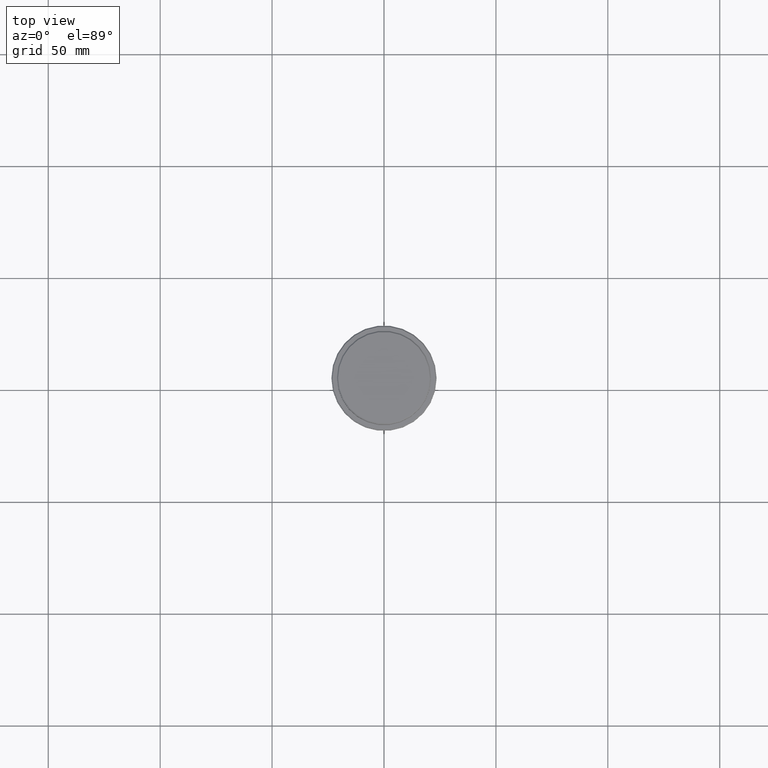
[diagram: clean part render]
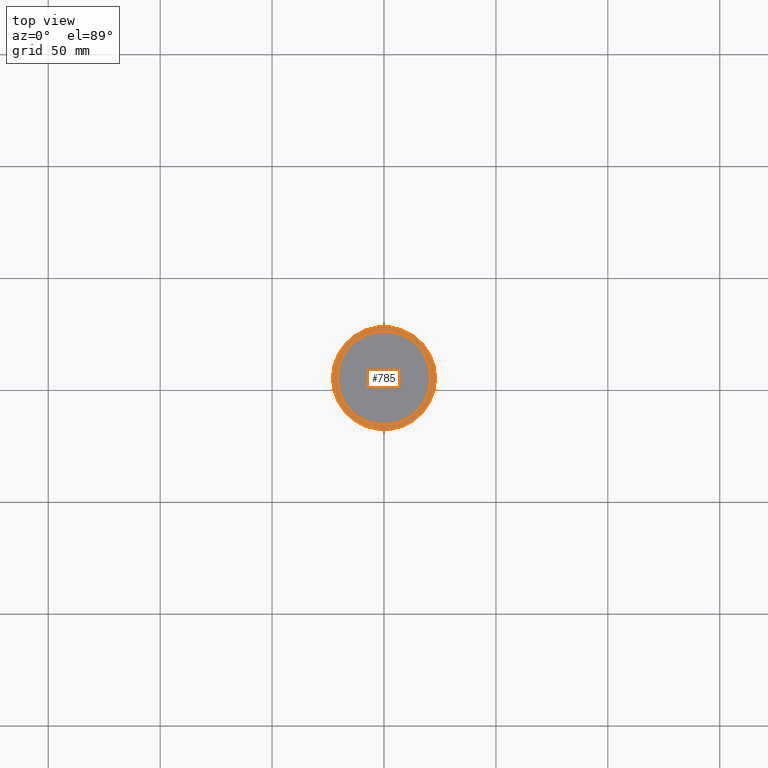
[diagram: same view with one face highlighted and labeled with its STEP entity id]
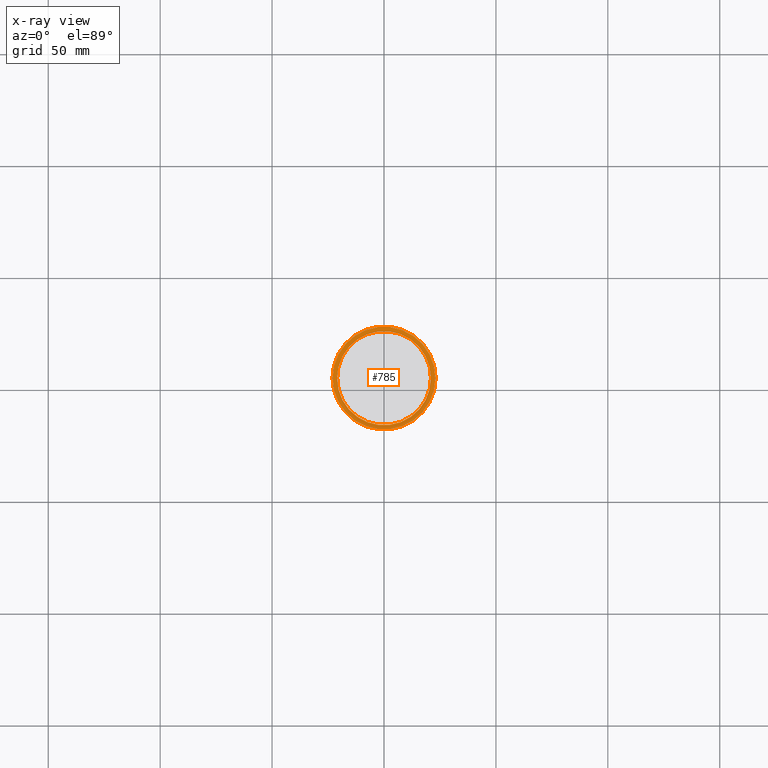
[diagram: x-ray of the same camera — body ghosted, the highlighted face saturated]
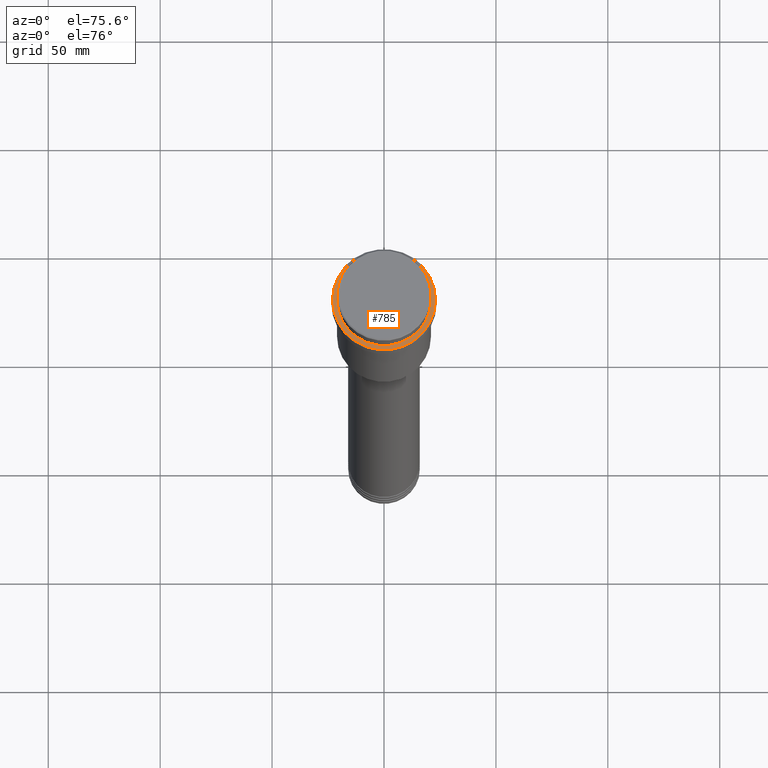
[diagram: same view with one face highlighted and labeled with its STEP entity id]
A machine part, top view. The second image highlights one B-rep face of the part: STEP entity #785.
The next image is the same camera in x-ray: the body ghosted, the highlighted face saturated — about 0% of this face is hidden behind the body in this view.
A second angle (auxiliary view) of the same face is appended — the face is thin or edge-on in the first view.
In plain terms, the highlighted planar face has unit normal (0, -0, 1).
Its self-contained STEP definition (entity closure, byte-faithful):
#4 = DIRECTION ( 'NONE',  ( 1.000000000000000000, 0.000000000000000000, 0.000000000000000000 ) ) ;
#15 = VERTEX_POINT ( 'NONE', #1355 ) ;
#28 = CIRCLE ( 'NONE', #766, 23.00000000000002487 ) ;
#95 = AXIS2_PLACEMENT_3D ( 'NONE', #943, #1371, #684 ) ;
#98 = EDGE_CURVE ( 'NONE', #935, #15, #28, .T. ) ;
#144 = DIRECTION ( 'NONE',  ( 1.000000000000000000, 0.000000000000000000, 0.000000000000000000 ) ) ;
#165 = FACE_BOUND ( 'NONE', #788, .T. ) ;
#169 = AXIS2_PLACEMENT_3D ( 'NONE', #1268, #392, #144 ) ;
#240 = EDGE_LOOP ( 'NONE', ( #616, #510 ) ) ;
#260 = VERTEX_POINT ( 'NONE', #455 ) ;
#287 = DIRECTION ( 'NONE',  ( -0.000000000000000000, -0.000000000000000000, 1.000000000000000000 ) ) ;
#311 = ORIENTED_EDGE ( 'NONE', *, *, #1154, .T. ) ;
#361 = ORIENTED_EDGE ( 'NONE', *, *, #952, .T. ) ;
#392 = DIRECTION ( 'NONE',  ( 0.000000000000000000, 0.000000000000000000, -1.000000000000000000 ) ) ;
#398 = CARTESIAN_POINT ( 'NONE',  ( 0.000000000000000000, 0.000000000000000000, -9.000000000000000000 ) ) ;
#455 = CARTESIAN_POINT ( 'NONE',  ( -20.99999999999999289, 2.571758278209440872E-15, -9.000000000000000000 ) ) ;
#510 = ORIENTED_EDGE ( 'NONE', *, *, #1099, .T. ) ;
#521 = CIRCLE ( 'NONE', #95, 20.99999999999999289 ) ;
#545 = DIRECTION ( 'NONE',  ( -0.000000000000000000, -0.000000000000000000, 1.000000000000000000 ) ) ;
#592 = AXIS2_PLACEMENT_3D ( 'NONE', #870, #545, #649 ) ;
#606 = FACE_OUTER_BOUND ( 'NONE', #240, .T. ) ;
#616 = ORIENTED_EDGE ( 'NONE', *, *, #98, .T. ) ;
#649 = DIRECTION ( 'NONE',  ( 1.000000000000000000, 0.000000000000000000, 0.000000000000000000 ) ) ;
#684 = DIRECTION ( 'NONE',  ( 1.000000000000000000, 0.000000000000000000, 0.000000000000000000 ) ) ;
#722 = DIRECTION ( 'NONE',  ( 1.000000000000000000, 0.000000000000000000, 0.000000000000000000 ) ) ;
#731 = AXIS2_PLACEMENT_3D ( 'NONE', #1373, #1037, #722 ) ;
#756 = CARTESIAN_POINT ( 'NONE',  ( 20.99999999999999289, 0.000000000000000000, -9.000000000000000000 ) ) ;
#766 = AXIS2_PLACEMENT_3D ( 'NONE', #398, #287, #4 ) ;
#785 = ADVANCED_FACE ( 'NONE', ( #606, #165 ), #1258, .T. ) ;
#788 = EDGE_LOOP ( 'NONE', ( #361, #311 ) ) ;
#870 = CARTESIAN_POINT ( 'NONE',  ( 0.000000000000000000, 0.000000000000000000, -9.000000000000000000 ) ) ;
#935 = VERTEX_POINT ( 'NONE', #987 ) ;
#943 = CARTESIAN_POINT ( 'NONE',  ( 0.000000000000000000, 0.000000000000000000, -9.000000000000000000 ) ) ;
#952 = EDGE_CURVE ( 'NONE', #1087, #260, #521, .T. ) ;
#987 = CARTESIAN_POINT ( 'NONE',  ( -23.00000000000002487, 0.000000000000000000, -9.000000000000000000 ) ) ;
#1037 = DIRECTION ( 'NONE',  ( 0.000000000000000000, -0.000000000000000000, 1.000000000000000000 ) ) ;
#1087 = VERTEX_POINT ( 'NONE', #756 ) ;
#1099 = EDGE_CURVE ( 'NONE', #15, #935, #1294, .T. ) ;
#1154 = EDGE_CURVE ( 'NONE', #260, #1087, #1334, .T. ) ;
#1258 = PLANE ( 'NONE',  #731 ) ;
#1268 = CARTESIAN_POINT ( 'NONE',  ( 0.000000000000000000, 0.000000000000000000, -9.000000000000000000 ) ) ;
#1294 = CIRCLE ( 'NONE', #592, 23.00000000000002487 ) ;
#1334 = CIRCLE ( 'NONE', #169, 20.99999999999999289 ) ;
#1355 = CARTESIAN_POINT ( 'NONE',  ( 23.00000000000002487, 2.847303808017597717E-15, -9.000000000000000000 ) ) ;
#1371 = DIRECTION ( 'NONE',  ( 0.000000000000000000, 0.000000000000000000, -1.000000000000000000 ) ) ;
#1373 = CARTESIAN_POINT ( 'NONE',  ( 0.000000000000000000, 20.49999999999999645, -9.000000000000000000 ) ) ;